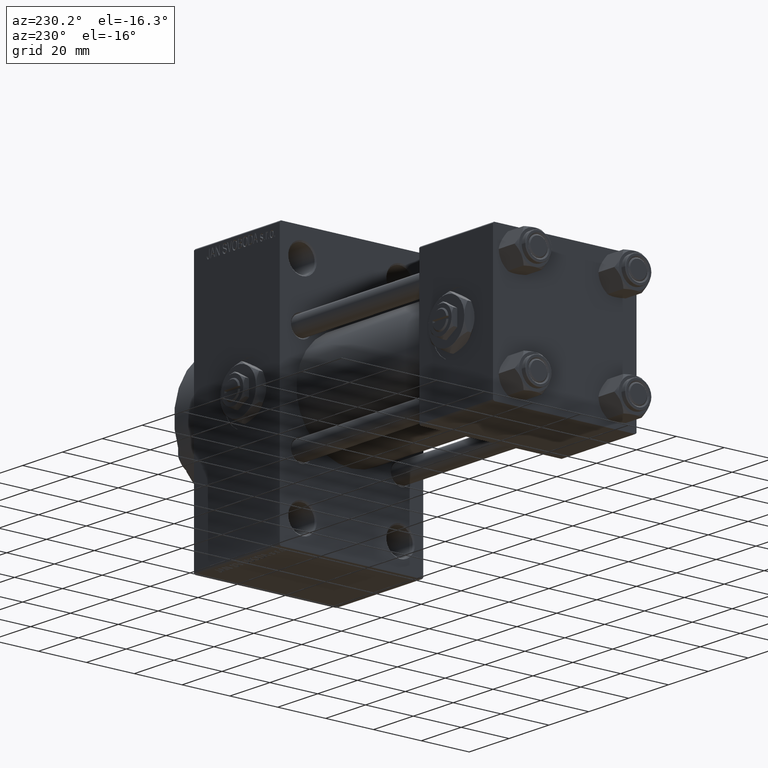
[diagram: clean part render]
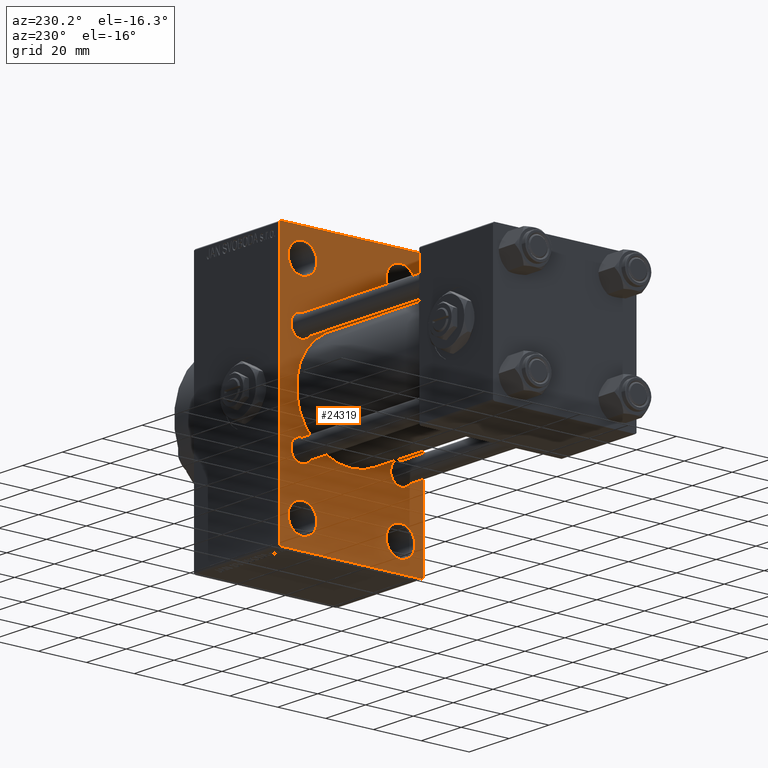
[diagram: same view with one face highlighted and labeled with its STEP entity id]
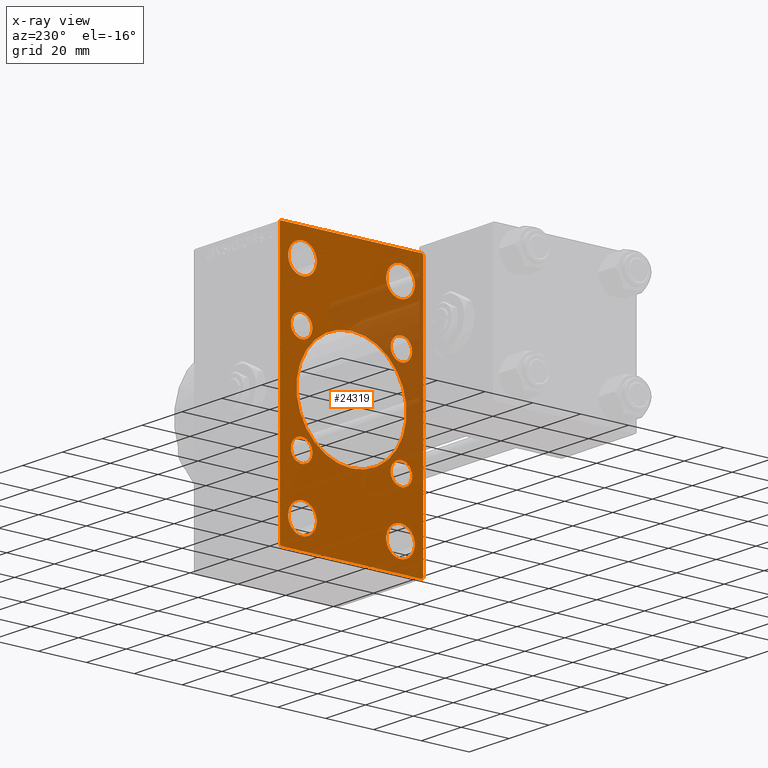
[diagram: x-ray of the same camera — body ghosted, the highlighted face saturated]
A machine part, auxiliary view. The second image highlights one B-rep face of the part: STEP entity #24319.
The next image is the same camera in x-ray: the body ghosted, the highlighted face saturated — about 22% of this face is hidden behind the body in this view.
In plain terms, the highlighted planar face has unit normal (-1, 0, 0).
Its self-contained STEP definition (entity closure, byte-faithful):
#380 = AXIS2_PLACEMENT_3D ( 'NONE', #5746, #24933, #9735 ) ;
#733 = DIRECTION ( 'NONE',  ( 0.000000000000000000, 0.000000000000000000, -1.000000000000000000 ) ) ;
#761 = VERTEX_POINT ( 'NONE', #10895 ) ;
#1051 = CARTESIAN_POINT ( 'NONE',  ( 107.0000000000000142, 20.84999999999999787, -25.35000000000000853 ) ) ;
#1093 = EDGE_CURVE ( 'NONE', #14258, #18425, #26944, .T. ) ;
#1132 = CIRCLE ( 'NONE', #22619, 4.500000000000007105 ) ;
#1560 = ORIENTED_EDGE ( 'NONE', *, *, #15898, .T. ) ;
#1890 = CARTESIAN_POINT ( 'NONE',  ( 107.0000000000000142, 20.84999999999999787, 16.34999999999999432 ) ) ;
#1984 = CIRCLE ( 'NONE', #27334, 5.999999999999866773 ) ;
#2016 = EDGE_LOOP ( 'NONE', ( #22134, #41260 ) ) ;
#2134 = LINE ( 'NONE', #24064, #28683 ) ;
#2415 = LINE ( 'NONE', #37301, #22444 ) ;
#2513 = CIRCLE ( 'NONE', #20796, 4.500000000000007105 ) ;
#2553 = EDGE_CURVE ( 'NONE', #18425, #14258, #21394, .T. ) ;
#2560 = EDGE_CURVE ( 'NONE', #30004, #43842, #34924, .T. ) ;
#2930 = LINE ( 'NONE', #44810, #23897 ) ;
#3505 = CARTESIAN_POINT ( 'NONE',  ( 107.0000000000000142, -30.00000000000000000, 53.99999999999997158 ) ) ;
#3645 = FACE_BOUND ( 'NONE', #19830, .T. ) ;
#3828 = ORIENTED_EDGE ( 'NONE', *, *, #6619, .T. ) ;
#3913 = CARTESIAN_POINT ( 'NONE',  ( 107.0000000000000142, 41.99999999999998579, -41.99999999999998579 ) ) ;
#4122 = FACE_BOUND ( 'NONE', #30836, .T. ) ;
#4222 = ORIENTED_EDGE ( 'NONE', *, *, #4353, .T. ) ;
#4353 = EDGE_CURVE ( 'NONE', #19522, #44519, #22957, .T. ) ;
#4814 = CARTESIAN_POINT ( 'NONE',  ( 107.0000000000000142, 20.50000000000000000, 49.49999999999986500 ) ) ;
#5072 = AXIS2_PLACEMENT_3D ( 'NONE', #25865, #45073, #40824 ) ;
#5138 = CIRCLE ( 'NONE', #21877, 5.999999999999866773 ) ;
#5319 = DIRECTION ( 'NONE',  ( 1.000000000000000000, -0.000000000000000000, 0.000000000000000000 ) ) ;
#5698 = ORIENTED_EDGE ( 'NONE', *, *, #20488, .T. ) ;
#5746 = CARTESIAN_POINT ( 'NONE',  ( 107.0000000000000142, 20.84999999999999787, -20.85000000000000142 ) ) ;
#6350 = EDGE_CURVE ( 'NONE', #10698, #40083, #2134, .T. ) ;
#6619 = EDGE_CURVE ( 'NONE', #41510, #12531, #40914, .T. ) ;
#6890 = VERTEX_POINT ( 'NONE', #42327 ) ;
#7016 = CARTESIAN_POINT ( 'NONE',  ( 107.0000000000000142, -20.50000000000000000, -37.50000000000012790 ) ) ;
#7068 = CARTESIAN_POINT ( 'NONE',  ( 107.0000000000000142, -30.00000000000000000, -53.99999999999998579 ) ) ;
#7136 = DIRECTION ( 'NONE',  ( 0.000000000000000000, 0.000000000000000000, -1.000000000000000000 ) ) ;
#7373 = CARTESIAN_POINT ( 'NONE',  ( 107.0000000000000142, 0.000000000000000000, 0.000000000000000000 ) ) ;
#7389 = AXIS2_PLACEMENT_3D ( 'NONE', #18251, #29448, #18489 ) ;
#7908 = EDGE_CURVE ( 'NONE', #43664, #20515, #44838, .T. ) ;
#7959 = VERTEX_POINT ( 'NONE', #18973 ) ;
#8949 = VERTEX_POINT ( 'NONE', #22478 ) ;
#9301 = CARTESIAN_POINT ( 'NONE',  ( 107.0000000000000142, 20.50000000000000000, -43.50000000000000000 ) ) ;
#9405 = VERTEX_POINT ( 'NONE', #21621 ) ;
#9449 = ORIENTED_EDGE ( 'NONE', *, *, #9853, .T. ) ;
#9735 = DIRECTION ( 'NONE',  ( 0.000000000000000000, 0.000000000000000000, 1.000000000000000000 ) ) ;
#9853 = EDGE_CURVE ( 'NONE', #12531, #12418, #47092, .T. ) ;
#9931 = CARTESIAN_POINT ( 'NONE',  ( 107.0000000000000142, -20.50000000000000000, 43.50000000000000000 ) ) ;
#10147 = CARTESIAN_POINT ( 'NONE',  ( 107.0000000000000142, 20.50000000000000000, -37.50000000000012790 ) ) ;
#10414 = CARTESIAN_POINT ( 'NONE',  ( 107.0000000000000142, -2.602085213965210642E-15, 0.000000000000000000 ) ) ;
#10477 = VERTEX_POINT ( 'NONE', #1051 ) ;
#10494 = DIRECTION ( 'NONE',  ( 1.000000000000000000, -0.000000000000000000, 0.000000000000000000 ) ) ;
#10628 = VECTOR ( 'NONE', #45973, 1000.000000000000000 ) ;
#10635 = VECTOR ( 'NONE', #46365, 1000.000000000000000 ) ;
#10698 = VERTEX_POINT ( 'NONE', #3505 ) ;
#10895 = CARTESIAN_POINT ( 'NONE',  ( 107.0000000000000142, 29.99999999999999645, 53.99999999999999289 ) ) ;
#10948 = EDGE_LOOP ( 'NONE', ( #3828, #9449, #20422, #20599, #40169, #34392, #14696, #5698 ) ) ;
#11092 = LINE ( 'NONE', #22542, #10628 ) ;
#11365 = FACE_BOUND ( 'NONE', #22414, .T. ) ;
#11489 = CARTESIAN_POINT ( 'NONE',  ( 107.0000000000000142, -2.602085213965210642E-15, 23.00000000000000000 ) ) ;
#11522 = AXIS2_PLACEMENT_3D ( 'NONE', #12109, #35515, #24286 ) ;
#11613 = FACE_OUTER_BOUND ( 'NONE', #10948, .T. ) ;
#12007 = CARTESIAN_POINT ( 'NONE',  ( 107.0000000000000142, -20.84999999999999076, 20.85000000000000497 ) ) ;
#12109 = CARTESIAN_POINT ( 'NONE',  ( 107.0000000000000142, -20.84999999999999076, 20.85000000000000497 ) ) ;
#12418 = VERTEX_POINT ( 'NONE', #7068 ) ;
#12531 = VERTEX_POINT ( 'NONE', #38457 ) ;
#12703 = EDGE_CURVE ( 'NONE', #10698, #12418, #11092, .T. ) ;
#12707 = CARTESIAN_POINT ( 'NONE',  ( 107.0000000000000142, -41.99999999999967315, -42.00000000000055422 ) ) ;
#13110 = DIRECTION ( 'NONE',  ( -0.000000000000000000, 0.7071067811865451302, 0.7071067811865500152 ) ) ;
#13571 = EDGE_CURVE ( 'NONE', #44519, #19522, #34516, .T. ) ;
#13625 = ORIENTED_EDGE ( 'NONE', *, *, #29739, .T. ) ;
#13713 = CARTESIAN_POINT ( 'NONE',  ( 107.0000000000000142, 29.49999999999999645, -54.49999999999999289 ) ) ;
#13952 = CARTESIAN_POINT ( 'NONE',  ( 107.0000000000000142, 20.84999999999999787, 25.35000000000000853 ) ) ;
#14080 = DIRECTION ( 'NONE',  ( 1.000000000000000000, -0.000000000000000000, 0.000000000000000000 ) ) ;
#14120 = DIRECTION ( 'NONE',  ( 0.000000000000000000, 0.000000000000000000, 1.000000000000000000 ) ) ;
#14258 = VERTEX_POINT ( 'NONE', #15213 ) ;
#14635 = DIRECTION ( 'NONE',  ( -0.000000000000000000, 0.000000000000000000, 1.000000000000000000 ) ) ;
#14696 = ORIENTED_EDGE ( 'NONE', *, *, #40709, .T. ) ;
#14830 = EDGE_LOOP ( 'NONE', ( #16987, #13625 ) ) ;
#15213 = CARTESIAN_POINT ( 'NONE',  ( 107.0000000000000142, 20.50000000000000000, 37.50000000000012790 ) ) ;
#15595 = FACE_BOUND ( 'NONE', #36733, .T. ) ;
#15717 = CARTESIAN_POINT ( 'NONE',  ( 107.0000000000000142, 20.50000000000000000, -49.49999999999986500 ) ) ;
#15859 = EDGE_CURVE ( 'NONE', #22697, #37289, #5138, .T. ) ;
#15898 = EDGE_CURVE ( 'NONE', #8949, #43948, #22655, .T. ) ;
#15931 = CIRCLE ( 'NONE', #36613, 5.999999999999866773 ) ;
#16099 = CARTESIAN_POINT ( 'NONE',  ( 107.0000000000000142, 29.49999999999999645, 54.49999999999999289 ) ) ;
#16194 = ORIENTED_EDGE ( 'NONE', *, *, #13571, .T. ) ;
#16627 = AXIS2_PLACEMENT_3D ( 'NONE', #36722, #24508, #24757 ) ;
#16987 = ORIENTED_EDGE ( 'NONE', *, *, #29514, .T. ) ;
#17269 = CARTESIAN_POINT ( 'NONE',  ( 107.0000000000000142, -20.50000000000000000, 49.49999999999986500 ) ) ;
#17805 = DIRECTION ( 'NONE',  ( 0.000000000000000000, 0.000000000000000000, 1.000000000000000000 ) ) ;
#18067 = CIRCLE ( 'NONE', #41927, 5.999999999999866773 ) ;
#18129 = DIRECTION ( 'NONE',  ( 1.000000000000000000, -0.000000000000000000, 0.000000000000000000 ) ) ;
#18171 = AXIS2_PLACEMENT_3D ( 'NONE', #37060, #18129, #22102 ) ;
#18241 = CARTESIAN_POINT ( 'NONE',  ( 107.0000000000000142, -20.84999999999999076, -25.35000000000001208 ) ) ;
#18251 = CARTESIAN_POINT ( 'NONE',  ( 107.0000000000000142, -20.84999999999999076, -20.85000000000000497 ) ) ;
#18425 = VERTEX_POINT ( 'NONE', #4814 ) ;
#18489 = DIRECTION ( 'NONE',  ( 0.000000000000000000, 0.000000000000000000, 1.000000000000000000 ) ) ;
#18540 = LINE ( 'NONE', #34209, #31130 ) ;
#18973 = CARTESIAN_POINT ( 'NONE',  ( 107.0000000000000142, 2.146024240737016609E-16, -23.00000000000000000 ) ) ;
#19088 = PLANE ( 'NONE',  #23634 ) ;
#19289 = DIRECTION ( 'NONE',  ( 1.000000000000000000, -0.000000000000000000, 0.000000000000000000 ) ) ;
#19481 = DIRECTION ( 'NONE',  ( 0.000000000000000000, 0.000000000000000000, 1.000000000000000000 ) ) ;
#19522 = VERTEX_POINT ( 'NONE', #24002 ) ;
#19612 = LINE ( 'NONE', #3913, #48319 ) ;
#19830 = EDGE_LOOP ( 'NONE', ( #29109, #33763 ) ) ;
#20314 = DIRECTION ( 'NONE',  ( 1.000000000000000000, -0.000000000000000000, 0.000000000000000000 ) ) ;
#20422 = ORIENTED_EDGE ( 'NONE', *, *, #12703, .F. ) ;
#20488 = EDGE_CURVE ( 'NONE', #9405, #41510, #19612, .T. ) ;
#20515 = VERTEX_POINT ( 'NONE', #30574 ) ;
#20599 = ORIENTED_EDGE ( 'NONE', *, *, #6350, .T. ) ;
#20796 = AXIS2_PLACEMENT_3D ( 'NONE', #12007, #26696, #19481 ) ;
#20940 = DIRECTION ( 'NONE',  ( 0.000000000000000000, 0.000000000000000000, 1.000000000000000000 ) ) ;
#21263 = DIRECTION ( 'NONE',  ( 0.000000000000000000, 0.000000000000000000, 1.000000000000000000 ) ) ;
#21394 = CIRCLE ( 'NONE', #16627, 5.999999999999866773 ) ;
#21621 = CARTESIAN_POINT ( 'NONE',  ( 107.0000000000000142, 29.99999999999999645, -53.99999999999999289 ) ) ;
#21786 = CARTESIAN_POINT ( 'NONE',  ( 107.0000000000000142, -20.84999999999999076, -20.85000000000000497 ) ) ;
#21877 = AXIS2_PLACEMENT_3D ( 'NONE', #39024, #20314, #35995 ) ;
#22102 = DIRECTION ( 'NONE',  ( 0.000000000000000000, 0.000000000000000000, 1.000000000000000000 ) ) ;
#22134 = ORIENTED_EDGE ( 'NONE', *, *, #47416, .T. ) ;
#22205 = CARTESIAN_POINT ( 'NONE',  ( 107.0000000000000142, 20.50000000000000000, 43.50000000000000000 ) ) ;
#22338 = VECTOR ( 'NONE', #49144, 1000.000000000000000 ) ;
#22414 = EDGE_LOOP ( 'NONE', ( #44746, #36834 ) ) ;
#22444 = VECTOR ( 'NONE', #7136, 1000.000000000000000 ) ;
#22478 = CARTESIAN_POINT ( 'NONE',  ( 107.0000000000000142, -20.84999999999999076, 16.34999999999999787 ) ) ;
#22542 = CARTESIAN_POINT ( 'NONE',  ( 107.0000000000000142, -30.00000000000000000, 54.50000000000000000 ) ) ;
#22619 = AXIS2_PLACEMENT_3D ( 'NONE', #28130, #23900, #31626 ) ;
#22655 = CIRCLE ( 'NONE', #11522, 4.500000000000007105 ) ;
#22697 = VERTEX_POINT ( 'NONE', #28401 ) ;
#22957 = CIRCLE ( 'NONE', #18171, 5.999999999999866773 ) ;
#23634 = AXIS2_PLACEMENT_3D ( 'NONE', #7373, #41282, #14635 ) ;
#23657 = EDGE_CURVE ( 'NONE', #38434, #36468, #18067, .T. ) ;
#23897 = VECTOR ( 'NONE', #29589, 1000.000000000000114 ) ;
#23900 = DIRECTION ( 'NONE',  ( 1.000000000000000000, -0.000000000000000000, 0.000000000000000000 ) ) ;
#24002 = CARTESIAN_POINT ( 'NONE',  ( 107.0000000000000142, -20.50000000000000000, -49.49999999999986500 ) ) ;
#24064 = CARTESIAN_POINT ( 'NONE',  ( 107.0000000000000142, -42.00000000000008527, 41.99999999999979394 ) ) ;
#24286 = DIRECTION ( 'NONE',  ( 0.000000000000000000, 0.000000000000000000, 1.000000000000000000 ) ) ;
#24319 = ADVANCED_FACE ( 'NONE', ( #15595, #4122, #49018, #37788, #26320, #37541, #3645, #11365, #48773, #11613 ), #19088, .T. ) ;
#24431 = AXIS2_PLACEMENT_3D ( 'NONE', #21786, #14080, #17805 ) ;
#24483 = EDGE_CURVE ( 'NONE', #20515, #43664, #29219, .T. ) ;
#24508 = DIRECTION ( 'NONE',  ( 1.000000000000000000, -0.000000000000000000, 0.000000000000000000 ) ) ;
#24548 = AXIS2_PLACEMENT_3D ( 'NONE', #22205, #10494, #28929 ) ;
#24673 = CARTESIAN_POINT ( 'NONE',  ( 107.0000000000000142, 20.50000000000000000, -43.50000000000000000 ) ) ;
#24726 = CARTESIAN_POINT ( 'NONE',  ( 107.0000000000000142, -29.49999999999997513, 54.50000000000000000 ) ) ;
#24757 = DIRECTION ( 'NONE',  ( 0.000000000000000000, 0.000000000000000000, 1.000000000000000000 ) ) ;
#24933 = DIRECTION ( 'NONE',  ( 1.000000000000000000, -0.000000000000000000, 0.000000000000000000 ) ) ;
#25128 = DIRECTION ( 'NONE',  ( 0.000000000000000000, 0.000000000000000000, 1.000000000000000000 ) ) ;
#25456 = CARTESIAN_POINT ( 'NONE',  ( 107.0000000000000142, 29.99999999999999645, -54.49999999999999289 ) ) ;
#25865 = CARTESIAN_POINT ( 'NONE',  ( 107.0000000000000142, -20.50000000000000000, -43.50000000000000000 ) ) ;
#26105 = DIRECTION ( 'NONE',  ( 1.000000000000000000, 0.000000000000000000, 0.000000000000000000 ) ) ;
#26320 = FACE_BOUND ( 'NONE', #44408, .T. ) ;
#26696 = DIRECTION ( 'NONE',  ( 1.000000000000000000, -0.000000000000000000, 0.000000000000000000 ) ) ;
#26944 = CIRCLE ( 'NONE', #24548, 5.999999999999866773 ) ;
#26963 = AXIS2_PLACEMENT_3D ( 'NONE', #38618, #34875, #733 ) ;
#26967 = ORIENTED_EDGE ( 'NONE', *, *, #40209, .T. ) ;
#27004 = CIRCLE ( 'NONE', #31803, 23.00000000000000000 ) ;
#27151 = ORIENTED_EDGE ( 'NONE', *, *, #2553, .T. ) ;
#27334 = AXIS2_PLACEMENT_3D ( 'NONE', #9931, #41088, #25128 ) ;
#27961 = ORIENTED_EDGE ( 'NONE', *, *, #30966, .T. ) ;
#28130 = CARTESIAN_POINT ( 'NONE',  ( 107.0000000000000142, 20.84999999999999787, -20.85000000000000142 ) ) ;
#28401 = CARTESIAN_POINT ( 'NONE',  ( 107.0000000000000142, -20.50000000000000000, 37.50000000000012790 ) ) ;
#28433 = ORIENTED_EDGE ( 'NONE', *, *, #23657, .T. ) ;
#28683 = VECTOR ( 'NONE', #13110, 1000.000000000000114 ) ;
#28796 = CARTESIAN_POINT ( 'NONE',  ( 107.0000000000000142, 20.84999999999999787, 20.85000000000000142 ) ) ;
#28927 = VERTEX_POINT ( 'NONE', #11489 ) ;
#28929 = DIRECTION ( 'NONE',  ( 0.000000000000000000, 0.000000000000000000, 1.000000000000000000 ) ) ;
#29109 = ORIENTED_EDGE ( 'NONE', *, *, #46916, .T. ) ;
#29219 = CIRCLE ( 'NONE', #24431, 4.500000000000007105 ) ;
#29448 = DIRECTION ( 'NONE',  ( 1.000000000000000000, -0.000000000000000000, 0.000000000000000000 ) ) ;
#29514 = EDGE_CURVE ( 'NONE', #28927, #7959, #42112, .T. ) ;
#29589 = DIRECTION ( 'NONE',  ( 0.000000000000000000, 0.7071067811865474617, -0.7071067811865474617 ) ) ;
#29739 = EDGE_CURVE ( 'NONE', #7959, #28927, #27004, .T. ) ;
#30004 = VERTEX_POINT ( 'NONE', #1890 ) ;
#30574 = CARTESIAN_POINT ( 'NONE',  ( 107.0000000000000142, -20.84999999999999076, -16.34999999999999787 ) ) ;
#30725 = DIRECTION ( 'NONE',  ( 0.000000000000000000, -1.000000000000000000, 1.156482317317871478E-16 ) ) ;
#30819 = DIRECTION ( 'NONE',  ( -0.000000000000000000, -0.7071067811865474617, -0.7071067811865474617 ) ) ;
#30836 = EDGE_LOOP ( 'NONE', ( #16194, #4222 ) ) ;
#30966 = EDGE_CURVE ( 'NONE', #36468, #38434, #15931, .T. ) ;
#31130 = VECTOR ( 'NONE', #30725, 1000.000000000000000 ) ;
#31626 = DIRECTION ( 'NONE',  ( 0.000000000000000000, 0.000000000000000000, 1.000000000000000000 ) ) ;
#31803 = AXIS2_PLACEMENT_3D ( 'NONE', #10414, #26105, #37819 ) ;
#32242 = CARTESIAN_POINT ( 'NONE',  ( 107.0000000000000142, 20.84999999999999787, 20.85000000000000142 ) ) ;
#32736 = DIRECTION ( 'NONE',  ( 0.000000000000000000, 0.000000000000000000, 1.000000000000000000 ) ) ;
#33763 = ORIENTED_EDGE ( 'NONE', *, *, #47635, .T. ) ;
#34209 = CARTESIAN_POINT ( 'NONE',  ( 107.0000000000000142, 29.99999999999999645, 54.49999999999999289 ) ) ;
#34392 = ORIENTED_EDGE ( 'NONE', *, *, #36521, .T. ) ;
#34516 = CIRCLE ( 'NONE', #5072, 5.999999999999866773 ) ;
#34875 = DIRECTION ( 'NONE',  ( 1.000000000000000000, 0.000000000000000000, 0.000000000000000000 ) ) ;
#34924 = CIRCLE ( 'NONE', #36510, 4.500000000000007105 ) ;
#35139 = EDGE_LOOP ( 'NONE', ( #27151, #39189 ) ) ;
#35397 = AXIS2_PLACEMENT_3D ( 'NONE', #28796, #44275, #14120 ) ;
#35515 = DIRECTION ( 'NONE',  ( 1.000000000000000000, -0.000000000000000000, 0.000000000000000000 ) ) ;
#35995 = DIRECTION ( 'NONE',  ( 0.000000000000000000, 0.000000000000000000, 1.000000000000000000 ) ) ;
#36468 = VERTEX_POINT ( 'NONE', #10147 ) ;
#36510 = AXIS2_PLACEMENT_3D ( 'NONE', #32242, #39967, #32736 ) ;
#36521 = EDGE_CURVE ( 'NONE', #45269, #761, #2930, .T. ) ;
#36613 = AXIS2_PLACEMENT_3D ( 'NONE', #9301, #5319, #21263 ) ;
#36722 = CARTESIAN_POINT ( 'NONE',  ( 107.0000000000000142, 20.50000000000000000, 43.50000000000000000 ) ) ;
#36733 = EDGE_LOOP ( 'NONE', ( #42249, #41470 ) ) ;
#36834 = ORIENTED_EDGE ( 'NONE', *, *, #7908, .T. ) ;
#36992 = CIRCLE ( 'NONE', #35397, 4.500000000000007105 ) ;
#37060 = CARTESIAN_POINT ( 'NONE',  ( 107.0000000000000142, -20.50000000000000000, -43.50000000000000000 ) ) ;
#37289 = VERTEX_POINT ( 'NONE', #17269 ) ;
#37301 = CARTESIAN_POINT ( 'NONE',  ( 107.0000000000000142, 29.99999999999999645, 54.49999999999999289 ) ) ;
#37541 = FACE_BOUND ( 'NONE', #2016, .T. ) ;
#37589 = EDGE_LOOP ( 'NONE', ( #27961, #28433 ) ) ;
#37775 = CIRCLE ( 'NONE', #380, 4.500000000000007105 ) ;
#37788 = FACE_BOUND ( 'NONE', #35139, .T. ) ;
#37819 = DIRECTION ( 'NONE',  ( 0.000000000000000000, 0.000000000000000000, -1.000000000000000000 ) ) ;
#38434 = VERTEX_POINT ( 'NONE', #15717 ) ;
#38457 = CARTESIAN_POINT ( 'NONE',  ( 107.0000000000000142, -29.49999999999997513, -54.50000000000000000 ) ) ;
#38618 = CARTESIAN_POINT ( 'NONE',  ( 107.0000000000000142, -2.602085213965210642E-15, 0.000000000000000000 ) ) ;
#39024 = CARTESIAN_POINT ( 'NONE',  ( 107.0000000000000142, -20.50000000000000000, 43.50000000000000000 ) ) ;
#39189 = ORIENTED_EDGE ( 'NONE', *, *, #1093, .T. ) ;
#39231 = EDGE_CURVE ( 'NONE', #45269, #40083, #18540, .T. ) ;
#39967 = DIRECTION ( 'NONE',  ( 1.000000000000000000, -0.000000000000000000, 0.000000000000000000 ) ) ;
#40083 = VERTEX_POINT ( 'NONE', #24726 ) ;
#40169 = ORIENTED_EDGE ( 'NONE', *, *, #39231, .F. ) ;
#40209 = EDGE_CURVE ( 'NONE', #43948, #8949, #2513, .T. ) ;
#40709 = EDGE_CURVE ( 'NONE', #761, #9405, #2415, .T. ) ;
#40824 = DIRECTION ( 'NONE',  ( 0.000000000000000000, 0.000000000000000000, 1.000000000000000000 ) ) ;
#40914 = LINE ( 'NONE', #25456, #22338 ) ;
#41088 = DIRECTION ( 'NONE',  ( 1.000000000000000000, -0.000000000000000000, 0.000000000000000000 ) ) ;
#41260 = ORIENTED_EDGE ( 'NONE', *, *, #2560, .T. ) ;
#41282 = DIRECTION ( 'NONE',  ( -1.000000000000000000, 0.000000000000000000, -0.000000000000000000 ) ) ;
#41470 = ORIENTED_EDGE ( 'NONE', *, *, #15859, .T. ) ;
#41510 = VERTEX_POINT ( 'NONE', #13713 ) ;
#41593 = CARTESIAN_POINT ( 'NONE',  ( 107.0000000000000142, -20.84999999999999076, 25.35000000000001208 ) ) ;
#41927 = AXIS2_PLACEMENT_3D ( 'NONE', #24673, #19289, #20940 ) ;
#42112 = CIRCLE ( 'NONE', #26963, 23.00000000000000000 ) ;
#42249 = ORIENTED_EDGE ( 'NONE', *, *, #48017, .T. ) ;
#42327 = CARTESIAN_POINT ( 'NONE',  ( 107.0000000000000142, 20.84999999999999787, -16.34999999999999432 ) ) ;
#43664 = VERTEX_POINT ( 'NONE', #18241 ) ;
#43842 = VERTEX_POINT ( 'NONE', #13952 ) ;
#43948 = VERTEX_POINT ( 'NONE', #41593 ) ;
#44275 = DIRECTION ( 'NONE',  ( 1.000000000000000000, -0.000000000000000000, 0.000000000000000000 ) ) ;
#44408 = EDGE_LOOP ( 'NONE', ( #26967, #1560 ) ) ;
#44519 = VERTEX_POINT ( 'NONE', #7016 ) ;
#44746 = ORIENTED_EDGE ( 'NONE', *, *, #24483, .T. ) ;
#44810 = CARTESIAN_POINT ( 'NONE',  ( 107.0000000000000142, 41.99999999999998579, 41.99999999999998579 ) ) ;
#44838 = CIRCLE ( 'NONE', #7389, 4.500000000000007105 ) ;
#45073 = DIRECTION ( 'NONE',  ( 1.000000000000000000, -0.000000000000000000, 0.000000000000000000 ) ) ;
#45269 = VERTEX_POINT ( 'NONE', #16099 ) ;
#45973 = DIRECTION ( 'NONE',  ( 0.000000000000000000, 0.000000000000000000, -1.000000000000000000 ) ) ;
#46365 = DIRECTION ( 'NONE',  ( 0.000000000000000000, -0.7071067811865549002, 0.7071067811865401342 ) ) ;
#46916 = EDGE_CURVE ( 'NONE', #6890, #10477, #1132, .T. ) ;
#47092 = LINE ( 'NONE', #12707, #10635 ) ;
#47416 = EDGE_CURVE ( 'NONE', #43842, #30004, #36992, .T. ) ;
#47635 = EDGE_CURVE ( 'NONE', #10477, #6890, #37775, .T. ) ;
#48017 = EDGE_CURVE ( 'NONE', #37289, #22697, #1984, .T. ) ;
#48319 = VECTOR ( 'NONE', #30819, 1000.000000000000114 ) ;
#48773 = FACE_BOUND ( 'NONE', #14830, .T. ) ;
#49018 = FACE_BOUND ( 'NONE', #37589, .T. ) ;
#49144 = DIRECTION ( 'NONE',  ( 0.000000000000000000, -1.000000000000000000, -1.156482317317871478E-16 ) ) ;